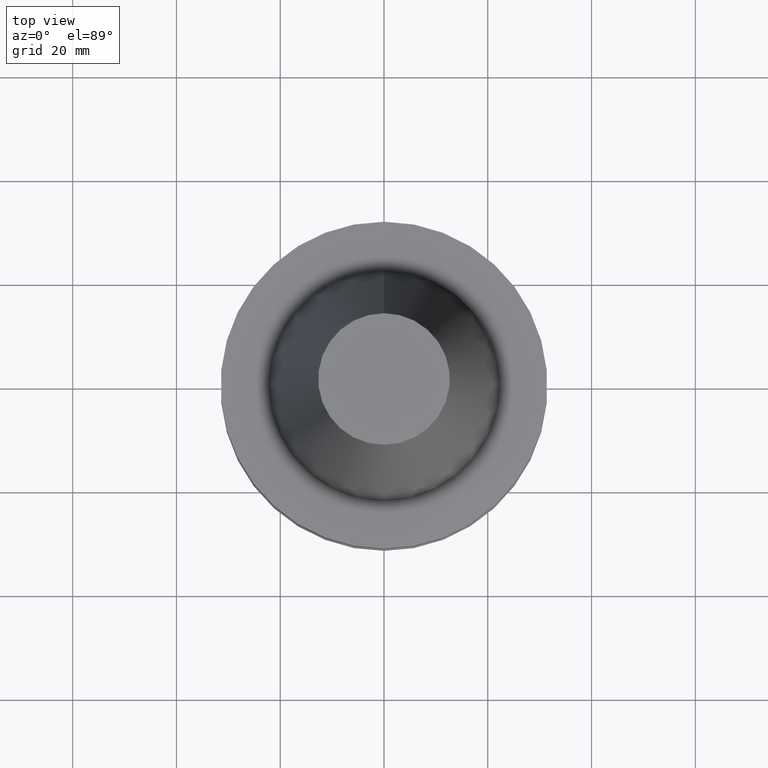
[diagram: clean part render]
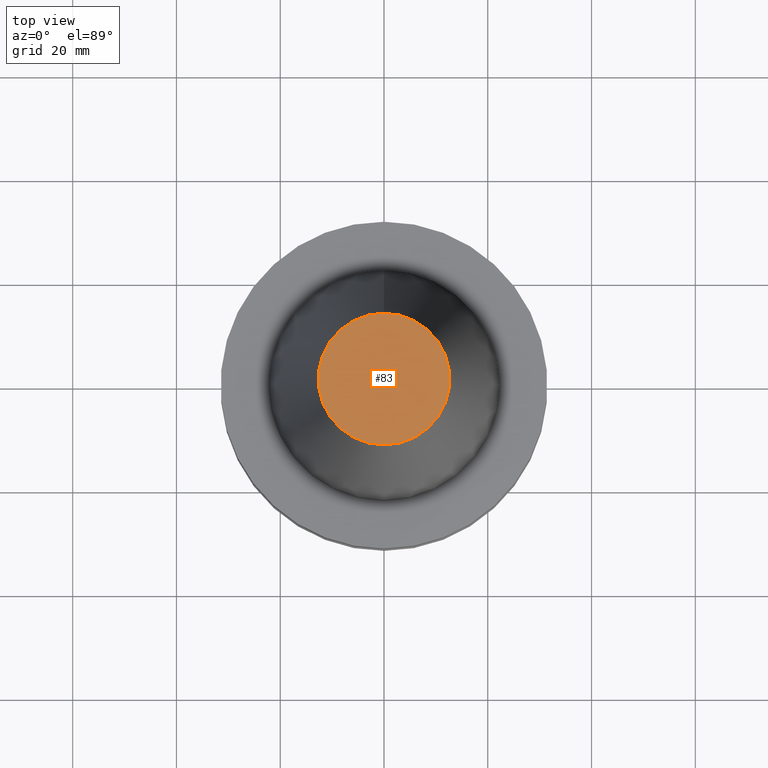
[diagram: same view with one face highlighted and labeled with its STEP entity id]
A machine part, top view. The second image highlights one B-rep face of the part: STEP entity #83.
In plain terms, the highlighted planar face has unit normal (-0, -0, 1).
Its self-contained STEP definition (entity closure, byte-faithful):
#83=ADVANCED_FACE('',(#113),#114,.T.);
#113=FACE_OUTER_BOUND('',#153,.T.);
#114=PLANE('',#154);
#153=EDGE_LOOP('',(#209));
#154=AXIS2_PLACEMENT_3D('',#210,#211,#212);
#209=ORIENTED_EDGE('',*,*,#246,.F.);
#210=CARTESIAN_POINT('',(-4.00459503321185E-015,6.34375044925611,65.4));
#211=DIRECTION('',(-6.12323399573677E-017,-1.22464679914735E-016,1.0));
#212=DIRECTION('',(1.23259516440783E-032,-1.0,-1.22464679914735E-016));
#246=EDGE_CURVE('',#267,#267,#268,.T.);
#267=VERTEX_POINT('',#293);
#268=CIRCLE('',#294,12.6875008985122);
#293=CARTESIAN_POINT('',(-4.00459503321185E-015,12.6875008985122,65.4));
#294=AXIS2_PLACEMENT_3D('',#327,#328,#329);
#327=CARTESIAN_POINT('',(-4.00459503321185E-015,-8.00919006642369E-015,65.4));
#328=DIRECTION('',(6.12323399573677E-017,1.22464679914735E-016,-1.0));
#329=DIRECTION('',(-1.23259516440783E-032,1.0,1.22464679914735E-016));